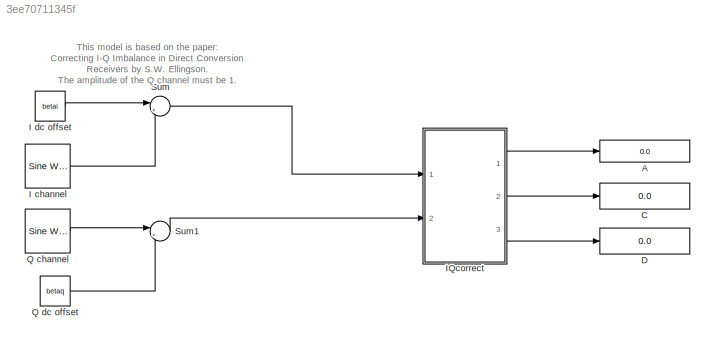
MODEL slx_3ee70711345f
KIND model
CONFIG AbsTol = auto
CONFIG FixedStep = auto
CONFIG InitFcn = Iamplitude = 0.8;\nomega = 100e6;\nbetai = 2;\nbetaq = 3;\noffsetdegree = -30;\nQradian = (90+offsetdegree)*pi/180;\nWSize = 10;
CONFIG MaxStep = auto
CONFIG MinStep = auto
CONFIG RelTol = 1e-3
CONFIG SampleTimeConstraint = Unconstrained
CONFIG Solver = FixedStepDiscrete
CONFIG SolverMode = SingleTasking
CONFIG SolverName = FixedStepDiscrete
CONFIG StartTime = 0.0
CONFIG StopTime = 1e-6
BLOCK [Display] A
  Decimation = 1
  Ports = [1]
BLOCK [Display] C
  Decimation = 1
  Ports = [1]
BLOCK [Display] D
  Decimation = 1
  Ports = [1]
BLOCK [Reference] I channel  REF=dspsrcs4/Sine Wave
  Amplitude = Iamplitude
  CompMethod = Table lookup
  Frequency = omega
  LastOutDataTypeStr = fixdt(1,16,15)
  OutComplex = Real
  OutDataTypeStr = fixdt(1,16,15)
  Phase = 0
  Ports = [0, 1]
  ResetState = Restart at time zero
  SampleMode = Discrete
  SampleTime = 1/(1000e6)
  SamplesPerFrame = 1
  SourceBlock = dspsrcs4/Sine Wave
  SourceType = Sine Wave
  TableSize = Speed
  additionalParams = off
  allowOverrides = on
  dataType = Fixed-point
  fracBitsMode = User-defined
  numFracBits = 15
  udDataType = sfix(16)
  wordLen = 16
BLOCK [Constant] I dc offset
  OutDataTypeStr = fixdt(1,16,0)
  SampleTime = 1/(1000e6)
  Value = betai
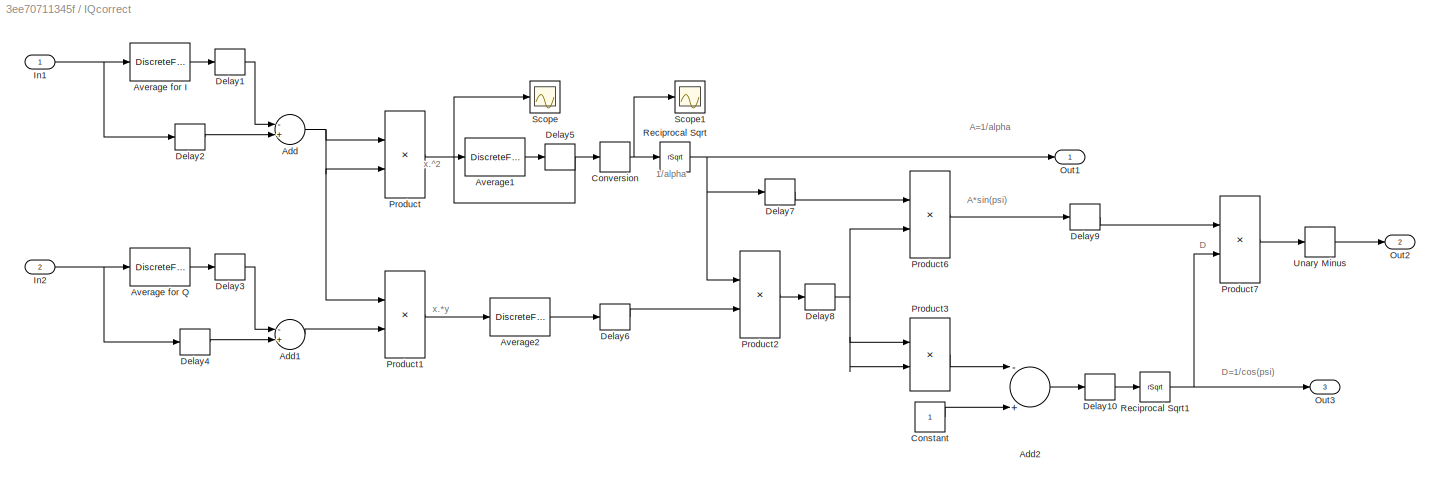
BLOCK [SubSystem] IQcorrect
  Ports = [2, 3]
  RequestExecContextInheritance = off
BLOCK [Sum] IQcorrect/Add
  InputSameDT = off
  Inputs = -+
  OutDataTypeStr = fixdt(1,16,15)
  Ports = [2, 1]
  SaturateOnIntegerOverflow = off
BLOCK [Sum] IQcorrect/Add1
  InputSameDT = off
  Inputs = -+
  OutDataTypeStr = fixdt(1,16,15)
  Ports = [2, 1]
  SaturateOnIntegerOverflow = off
BLOCK [Sum] IQcorrect/Add2
  InputSameDT = off
  Inputs = -+
  OutDataTypeStr = fixdt(0,16,15)
  Ports = [2, 1]
  SaturateOnIntegerOverflow = off
BLOCK [DiscreteFir] IQcorrect/Average for I
  Coefficients = ones(1,WSize)./WSize
  FilterStructure = Direct form transposed
  OutDataTypeStr = fixdt(1,16,10)
  Ports = [1, 1]
BLOCK [DiscreteFir] IQcorrect/Average for Q
  Coefficients = ones(1,WSize)./WSize
  FilterStructure = Direct form transposed
  OutDataTypeStr = fixdt(1,16,9)
  Ports = [1, 1]
BLOCK [DiscreteFir] IQcorrect/Average1
  Coefficients = ones(1,WSize).*(2/WSize)
  FilterStructure = Direct form transposed
  OutDataTypeStr = fixdt(1,16,12)
  Ports = [1, 1]
BLOCK [DiscreteFir] IQcorrect/Average2
  Coefficients = ones(1,WSize).*(2/WSize)
  FilterStructure = Direct form transposed
  OutDataTypeStr = fixdt(1,16,13)
  Ports = [1, 1]
BLOCK [Constant] IQcorrect/Constant
  OutDataTypeStr = fixdt(1,16,0)
  SampleTime = 1/(1000e6)
BLOCK [DataTypeConversion] IQcorrect/Conversion
  OutDataTypeStr = fixdt(0,16,13)
  RndMeth = Floor
  SaturateOnIntegerOverflow = off
BLOCK [Delay] IQcorrect/Delay1
  InitialCondition = 0
  InputPortMap = u0
  Ports = [1, 1]
  UserDataPersistent = on
BLOCK [Delay] IQcorrect/Delay10
  InitialCondition = 0
  InputPortMap = u0
  Ports = [1, 1]
  UserDataPersistent = on
BLOCK [Delay] IQcorrect/Delay2
  InitialCondition = 0
  InputPortMap = u0
  Ports = [1, 1]
  UserDataPersistent = on
BLOCK [Delay] IQcorrect/Delay3
  InitialCondition = 0
  InputPortMap = u0
  Ports = [1, 1]
  UserDataPersistent = on
BLOCK [Delay] IQcorrect/Delay4
  InitialCondition = 0
  InputPortMap = u0
  Ports = [1, 1]
  UserDataPersistent = on
BLOCK [Delay] IQcorrect/Delay5
  DelayLength = 4
  InitialCondition = 0
  InputPortMap = u0
  Ports = [1, 1]
  UserDataPersistent = on
BLOCK [Delay] IQcorrect/Delay6
  DelayLength = 4
  InitialCondition = 0
  InputPortMap = u0
  Ports = [1, 1]
  UserDataPersistent = on
BLOCK [Delay] IQcorrect/Delay7
  DelayLength = 4
  InitialCondition = 0
  InputPortMap = u0
  Ports = [1, 1]
  UserDataPersistent = on
BLOCK [Delay] IQcorrect/Delay8
  DelayLength = 4
  InitialCondition = 0
  InputPortMap = u0
  Ports = [1, 1]
  UserDataPersistent = on
BLOCK [Delay] IQcorrect/Delay9
  InitialCondition = 0
  InputPortMap = u0
  Ports = [1, 1]
  UserDataPersistent = on
BLOCK [Inport] IQcorrect/In1
  IconDisplay = Port number
BLOCK [Inport] IQcorrect/In2
  IconDisplay = Port number
  Port = 2
BLOCK [Outport] IQcorrect/Out1
  IconDisplay = Port number
BLOCK [Outport] IQcorrect/Out2
  IconDisplay = Port number
  Port = 2
BLOCK [Outport] IQcorrect/Out3
  IconDisplay = Port number
  Port = 3
BLOCK [Product] IQcorrect/Product
  InputSameDT = off
  OutDataTypeStr = fixdt(1,16,15)
  Ports = [2, 1]
  SaturateOnIntegerOverflow = off
BLOCK [Product] IQcorrect/Product1
  InputSameDT = off
  OutDataTypeStr = fixdt(1,16,15)
  Ports = [2, 1]
  SaturateOnIntegerOverflow = off
BLOCK [Product] IQcorrect/Product2
  InputSameDT = off
  OutDataTypeStr = fixdt(1,16,15)
  Ports = [2, 1]
  SaturateOnIntegerOverflow = off
BLOCK [Product] IQcorrect/Product3
  InputSameDT = off
  OutDataTypeStr = fixdt(0,16,16)
  Ports = [2, 1]
  SaturateOnIntegerOverflow = off
BLOCK [Product] IQcorrect/Product6
  InputSameDT = off
  OutDataTypeStr = fixdt(1,16,14)
  Ports = [2, 1]
  SaturateOnIntegerOverflow = off
BLOCK [Product] IQcorrect/Product7
  InputSameDT = off
  OutDataTypeStr = fixdt(1,16,14)
  Ports = [2, 1]
  SaturateOnIntegerOverflow = off
BLOCK [Sqrt] IQcorrect/Reciprocal Sqrt
  AlgorithmType = Newton-Raphson
  IntermediateResultsDataTypeStr = Inherit: Inherit from input
  Operator = rSqrt
  OutDataTypeStr = fixdt(1,16,14)
BLOCK [Sqrt] IQcorrect/Reciprocal Sqrt1
  AlgorithmType = Newton-Raphson
  IntermediateResultsDataTypeStr = Inherit: Inherit from input
  Operator = rSqrt
  OutDataTypeStr = fixdt(0,16,15)
BLOCK [Scope] IQcorrect/Scope
  Floating = off
  NumInputPorts = 1
  Ports = [1]
BLOCK [Scope] IQcorrect/Scope1
  Floating = off
  NumInputPorts = 1
  Ports = [1]
  SaveName = ScopeData1
BLOCK [UnaryMinus] IQcorrect/Unary Minus
BLOCK [Reference] Q channel  REF=dspsrcs4/Sine Wave
  Amplitude = 1
  CompMethod = Table lookup
  Frequency = omega
  LastOutDataTypeStr = fixdt(1,16,14)
  OutComplex = Real
  OutDataTypeStr = fixdt(1,16,14)
  Phase = Qradian
  Ports = [0, 1]
  ResetState = Restart at time zero
  SampleMode = Discrete
  SampleTime = 1/(1000e6)
  SamplesPerFrame = 1
  SourceBlock = dspsrcs4/Sine Wave
  SourceType = Sine Wave
  TableSize = Speed
  additionalParams = off
  allowOverrides = on
  dataType = Fixed-point
  fracBitsMode = User-defined
  numFracBits = 14
  udDataType = sfix(16)
  wordLen = 16
BLOCK [Constant] Q dc offset
  OutDataTypeStr = fixdt(1,16,0)
  SampleTime = 1/(1000e6)
  Value = betaq
BLOCK [Sum] Sum
  IconShape = round
  InputSameDT = off
  Inputs = |++
  OutDataTypeStr = fixdt(1,16,13)
  Ports = [2, 1]
  SaturateOnIntegerOverflow = off
BLOCK [Sum] Sum1
  IconShape = round
  InputSameDT = off
  Inputs = |++
  OutDataTypeStr = fixdt(1,16,13)
  Ports = [2, 1]
  SaturateOnIntegerOverflow = off
ANNOTATION (root): This model is based on the paper: Correcting I-Q Imbalance in Direct Conversion Receivers by S.W. Ellingson. The amplitude of the Q channel must be 1.
ANNOTATION IQcorrect: x.^2
ANNOTATION IQcorrect: 1/alpha
ANNOTATION IQcorrect: A*sin(psi)
ANNOTATION IQcorrect: A=1/alpha
ANNOTATION IQcorrect: D
ANNOTATION IQcorrect: D=1/cos(psi)
ANNOTATION IQcorrect: x.*y
LINE I channel:1 -> Sum:2
LINE I dc offset:1 -> Sum:1
LINE IQcorrect/Add1:1 -> IQcorrect/Product1:2
LINE IQcorrect/Add2:1 -> IQcorrect/Delay10:1
NET IQcorrect/Add:1 -> IQcorrect/Product1:1, IQcorrect/Product:1, IQcorrect/Product:2
LINE IQcorrect/Average for I:1 -> IQcorrect/Delay1:1
LINE IQcorrect/Average for Q:1 -> IQcorrect/Delay3:1
LINE IQcorrect/Average1:1 -> IQcorrect/Delay5:1
LINE IQcorrect/Average2:1 -> IQcorrect/Delay6:1
LINE IQcorrect/Constant:1 -> IQcorrect/Add2:2
NET IQcorrect/Conversion:1 -> IQcorrect/Reciprocal Sqrt:1, IQcorrect/Scope1:1
LINE IQcorrect/Delay10:1 -> IQcorrect/Reciprocal Sqrt1:1
LINE IQcorrect/Delay1:1 -> IQcorrect/Add:1
LINE IQcorrect/Delay2:1 -> IQcorrect/Add:2
LINE IQcorrect/Delay3:1 -> IQcorrect/Add1:1
LINE IQcorrect/Delay4:1 -> IQcorrect/Add1:2
NET IQcorrect/Delay5:1 -> IQcorrect/Conversion:1, IQcorrect/Scope:1
LINE IQcorrect/Delay6:1 -> IQcorrect/Product2:2
LINE IQcorrect/Delay7:1 -> IQcorrect/Product6:1
NET IQcorrect/Delay8:1 -> IQcorrect/Product3:1, IQcorrect/Product3:2, IQcorrect/Product6:2
LINE IQcorrect/Delay9:1 -> IQcorrect/Product7:1
NET IQcorrect/In1:1 -> IQcorrect/Average for I:1, IQcorrect/Delay2:1
NET IQcorrect/In2:1 -> IQcorrect/Average for Q:1, IQcorrect/Delay4:1
LINE IQcorrect/Product1:1 -> IQcorrect/Average2:1
LINE IQcorrect/Product2:1 -> IQcorrect/Delay8:1
LINE IQcorrect/Product3:1 -> IQcorrect/Add2:1
LINE IQcorrect/Product6:1 -> IQcorrect/Delay9:1
LINE IQcorrect/Product7:1 -> IQcorrect/Unary Minus:1
LINE IQcorrect/Product:1 -> IQcorrect/Average1:1
NET IQcorrect/Reciprocal Sqrt1:1 -> IQcorrect/Out3:1, IQcorrect/Product7:2
NET IQcorrect/Reciprocal Sqrt:1 -> IQcorrect/Delay7:1, IQcorrect/Out1:1, IQcorrect/Product2:1
LINE IQcorrect/Unary Minus:1 -> IQcorrect/Out2:1
LINE IQcorrect:1 -> A:1
LINE IQcorrect:2 -> C:1
LINE IQcorrect:3 -> D:1
LINE Q channel:1 -> Sum1:1
LINE Q dc offset:1 -> Sum1:2
LINE Sum1:1 -> IQcorrect:2
LINE Sum:1 -> IQcorrect:1
note: NET lines group one-source signal fan-out (src -> all destinations, sorted); 1:1 wires keep LINE
